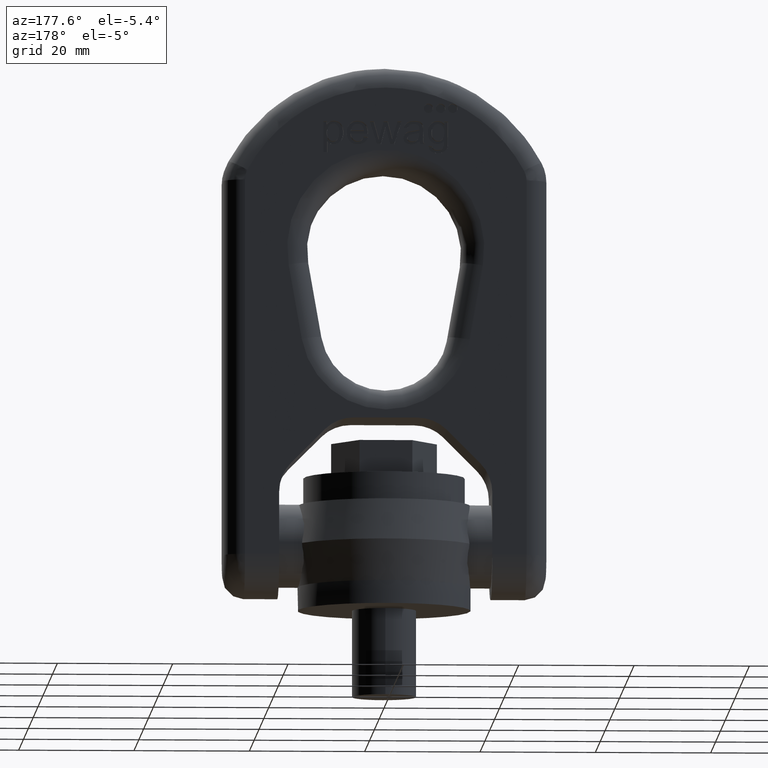
[diagram: clean part render]
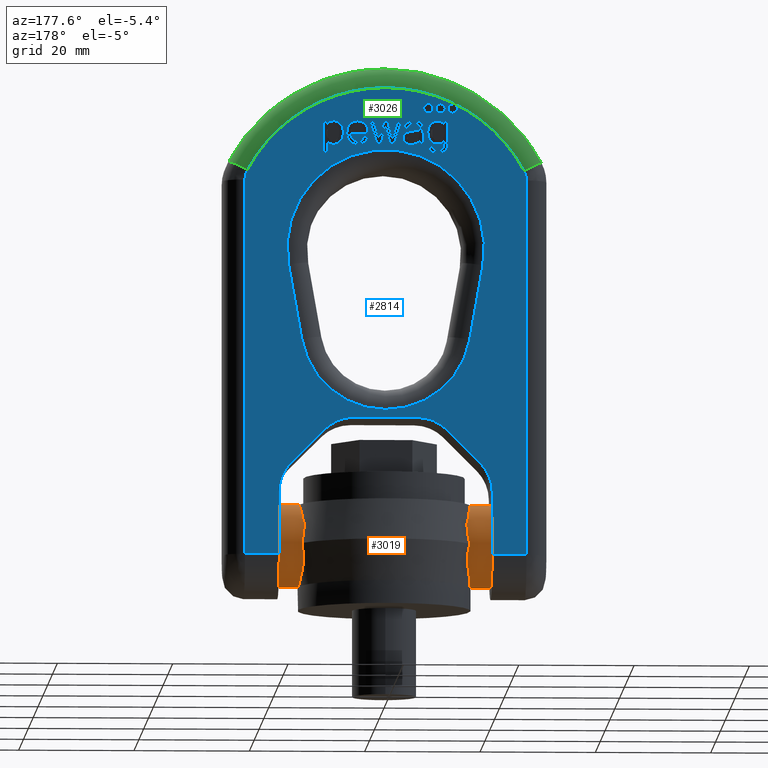
[diagram: same view with three faces highlighted in distinct colors, each labeled with its STEP entity id]
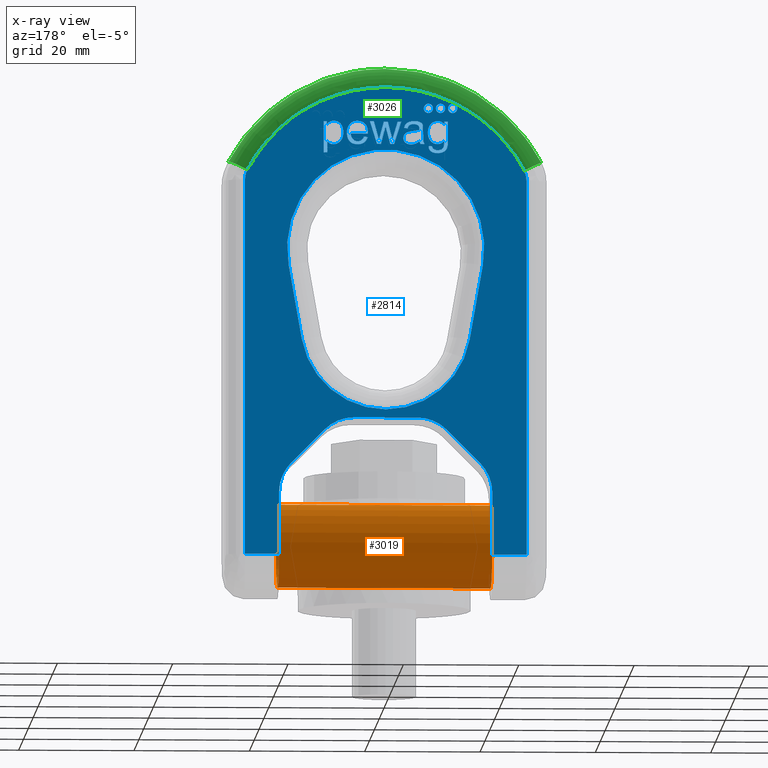
[diagram: x-ray of the same camera — body ghosted, the three highlighted faces saturated]
A machine part, auxiliary view with three faces highlighted in distinct colors.
The next image is the same camera in x-ray (body ghosted, the three faces saturated) — at least one of them is partly hidden behind the body in this view.
Their STEP definitions:

[orange] entity #3019 — the highlighted cylindrical surface (bore or boss wall) has radius 7.2 mm, axis along (-1, 0, 0).
#3019=ADVANCED_FACE('',(#3135,#3136),#3060,.T.);
#3060=CYLINDRICAL_SURFACE('',#6029,7.2);
#3135=FACE_BOUND('',#3411,.T.);
#3136=FACE_BOUND('',#3412,.T.);
#3411=EDGE_LOOP('',(#4613,#4614));
#3412=EDGE_LOOP('',(#4615,#4616));
#4613=ORIENTED_EDGE('',*,*,#5162,.F.);
#4614=ORIENTED_EDGE('',*,*,#5716,.F.);
#4615=ORIENTED_EDGE('',*,*,#5166,.F.);
#4616=ORIENTED_EDGE('',*,*,#5717,.F.);
#4729=VERTEX_POINT('',#7037);
#4731=VERTEX_POINT('',#7040);
#4733=VERTEX_POINT('',#7046);
#4735=VERTEX_POINT('',#7049);
#5162=EDGE_CURVE('',#4729,#4731,#5757,.T.);
#5166=EDGE_CURVE('',#4733,#4735,#5758,.T.);
#5716=EDGE_CURVE('',#4731,#4729,#5801,.T.);
#5717=EDGE_CURVE('',#4735,#4733,#5802,.T.);
#5757=CIRCLE('',#5859,7.2);
#5758=CIRCLE('',#5861,7.2);
#5801=CIRCLE('',#6012,7.2);
#5802=CIRCLE('',#6014,7.2);
#5859=AXIS2_PLACEMENT_3D('',#7039,#6165,#6166);
#5861=AXIS2_PLACEMENT_3D('',#7048,#6172,#6173);
#6012=AXIS2_PLACEMENT_3D('',#9690,#6825,#6826);
#6014=AXIS2_PLACEMENT_3D('',#9692,#6829,#6830);
#6029=AXIS2_PLACEMENT_3D('',#9714,#6866,#6867);
#6165=DIRECTION('',(-1.,0.,1.50845519650157E-16));
#6166=DIRECTION('',(0.,0.,-1.));
#6172=DIRECTION('',(1.,0.,1.50845519650157E-16));
#6173=DIRECTION('',(0.,0.,1.));
#6825=DIRECTION('',(-1.,0.,1.50845519650157E-16));
#6826=DIRECTION('',(0.,0.,-1.));
#6829=DIRECTION('',(1.,0.,1.50845519650157E-16));
#6830=DIRECTION('',(0.,0.,1.));
#6866=DIRECTION('',(-1.,0.,0.));
#6867=DIRECTION('',(0.,0.,1.));
#7037=CARTESIAN_POINT('',(-18.48,-7.2,11.2));
#7039=CARTESIAN_POINT('',(-18.48,0.,11.2));
#7040=CARTESIAN_POINT('',(-18.48,7.20000000000004,11.2));
#7046=CARTESIAN_POINT('',(18.48,-7.2,11.2));
#7048=CARTESIAN_POINT('',(18.48,0.,11.2));
#7049=CARTESIAN_POINT('',(18.48,7.19999999999996,11.2));
#9690=CARTESIAN_POINT('',(-18.48,0.,11.2));
#9692=CARTESIAN_POINT('',(18.48,0.,11.2));
#9714=CARTESIAN_POINT('',(28.,0.,11.2));

[blue] entity #2814 — the highlighted planar face has unit normal (0, 1, 0).
#337=B_SPLINE_CURVE_WITH_KNOTS('',3,(#7431,#7432,#7433,#7434),
 .UNSPECIFIED.,.F.,.F.,(4,4),(0.,1.),.UNSPECIFIED.);
#338=B_SPLINE_CURVE_WITH_KNOTS('',3,(#7436,#7437,#7438,#7439,#7440,#7441,
#7442,#7443,#7444,#7445),.UNSPECIFIED.,.F.,.F.,(4,2,2,2,4),(0.,0.228358481914091,
0.466434346037291,0.703045305681468,1.),.UNSPECIFIED.);
#339=B_SPLINE_CURVE_WITH_KNOTS('',3,(#7447,#7448,#7449,#7450),
 .UNSPECIFIED.,.F.,.F.,(4,4),(0.,1.),.UNSPECIFIED.);
#340=B_SPLINE_CURVE_WITH_KNOTS('',3,(#7454,#7455,#7456,#7457),
 .UNSPECIFIED.,.F.,.F.,(4,4),(0.,1.),.UNSPECIFIED.);
#341=B_SPLINE_CURVE_WITH_KNOTS('',3,(#7459,#7460,#7461,#7462),
 .UNSPECIFIED.,.F.,.F.,(4,4),(0.,1.),.UNSPECIFIED.);
#342=B_SPLINE_CURVE_WITH_KNOTS('',3,(#7464,#7465,#7466,#7467),
 .UNSPECIFIED.,.F.,.F.,(4,4),(0.,1.),.UNSPECIFIED.);
#343=B_SPLINE_CURVE_WITH_KNOTS('',3,(#7469,#7470,#7471,#7472),
 .UNSPECIFIED.,.F.,.F.,(4,4),(0.,1.),.UNSPECIFIED.);
#344=B_SPLINE_CURVE_WITH_KNOTS('',3,(#7474,#7475,#7476,#7477,#7478,#7479),
 .UNSPECIFIED.,.F.,.F.,(4,2,4),(0.,0.55978260869565,1.),.UNSPECIFIED.);
#345=B_SPLINE_CURVE_WITH_KNOTS('',3,(#7481,#7482,#7483,#7484),
 .UNSPECIFIED.,.F.,.F.,(4,4),(0.,1.),.UNSPECIFIED.);
#346=B_SPLINE_CURVE_WITH_KNOTS('',3,(#7488,#7489,#7490,#7491),
 .UNSPECIFIED.,.F.,.F.,(4,4),(0.,1.),.UNSPECIFIED.);
#347=B_SPLINE_CURVE_WITH_KNOTS('',3,(#7493,#7494,#7495,#7496,#7497,#7498),
 .UNSPECIFIED.,.F.,.F.,(4,2,4),(0.,0.476123595505615,1.),.UNSPECIFIED.);
#348=B_SPLINE_CURVE_WITH_KNOTS('',3,(#7500,#7501,#7502,#7503),
 .UNSPECIFIED.,.F.,.F.,(4,4),(0.,1.),.UNSPECIFIED.);
#349=B_SPLINE_CURVE_WITH_KNOTS('',3,(#7505,#7506,#7507,#7508,#7509,#7510,
#7511,#7512),.UNSPECIFIED.,.F.,.F.,(4,2,2,4),(0.,0.472355769230762,0.730769230769214,
1.),.UNSPECIFIED.);
#350=B_SPLINE_CURVE_WITH_KNOTS('',3,(#7514,#7515,#7516,#7517),
 .UNSPECIFIED.,.F.,.F.,(4,4),(0.,1.),.UNSPECIFIED.);
#351=B_SPLINE_CURVE_WITH_KNOTS('',3,(#7525,#7526,#7527,#7528),
 .UNSPECIFIED.,.F.,.F.,(4,4),(0.,1.),.UNSPECIFIED.);
#352=B_SPLINE_CURVE_WITH_KNOTS('',3,(#7530,#7531,#7532,#7533),
 .UNSPECIFIED.,.F.,.F.,(4,4),(0.,1.),.UNSPECIFIED.);
#353=B_SPLINE_CURVE_WITH_KNOTS('',3,(#7555,#7556,#7557,#7558),
 .UNSPECIFIED.,.F.,.F.,(4,4),(0.,1.),.UNSPECIFIED.);
#354=B_SPLINE_CURVE_WITH_KNOTS('',3,(#7568,#7569,#7570,#7571),
 .UNSPECIFIED.,.F.,.F.,(4,4),(0.,1.),.UNSPECIFIED.);
#355=B_SPLINE_CURVE_WITH_KNOTS('',3,(#7573,#7574,#7575,#7576,#7577,#7578),
 .UNSPECIFIED.,.F.,.F.,(4,2,4),(0.,0.434679334916866,1.),.UNSPECIFIED.);
#356=B_SPLINE_CURVE_WITH_KNOTS('',3,(#7580,#7581,#7582,#7583),
 .UNSPECIFIED.,.F.,.F.,(4,4),(0.,1.),.UNSPECIFIED.);
#357=B_SPLINE_CURVE_WITH_KNOTS('',3,(#7587,#7588,#7589,#7590),
 .UNSPECIFIED.,.F.,.F.,(4,4),(0.,1.),.UNSPECIFIED.);
#358=B_SPLINE_CURVE_WITH_KNOTS('',3,(#7592,#7593,#7594,#7595,#7596,#7597),
 .UNSPECIFIED.,.F.,.F.,(4,2,4),(0.,0.570469798657718,1.),.UNSPECIFIED.);
#359=B_SPLINE_CURVE_WITH_KNOTS('',3,(#7599,#7600,#7601,#7602,#7603,#7604,
#7605,#7606,#7607,#7608,#7609,#7610),.UNSPECIFIED.,.F.,.F.,(4,2,2,2,2,4),
(0.,0.122570626594234,0.245141253188468,0.495637533752412,0.746133814316355,
1.),.UNSPECIFIED.);
#360=B_SPLINE_CURVE_WITH_KNOTS('',3,(#7612,#7613,#7614,#7615),
 .UNSPECIFIED.,.F.,.F.,(4,4),(0.,1.),.UNSPECIFIED.);
#361=B_SPLINE_CURVE_WITH_KNOTS('',3,(#7616,#7617,#7618,#7619),
 .UNSPECIFIED.,.F.,.F.,(4,4),(0.,1.),.UNSPECIFIED.);
#362=B_SPLINE_CURVE_WITH_KNOTS('',3,(#7622,#7623,#7624,#7625),
 .UNSPECIFIED.,.F.,.F.,(4,4),(0.,1.),.UNSPECIFIED.);
#363=B_SPLINE_CURVE_WITH_KNOTS('',3,(#7627,#7628,#7629,#7630,#7631,#7632,
#7633,#7634,#7635,#7636),.UNSPECIFIED.,.F.,.F.,(4,2,2,2,4),(0.,0.230139294836345,
0.492074150143503,0.754009005450665,1.),.UNSPECIFIED.);
#364=B_SPLINE_CURVE_WITH_KNOTS('',3,(#7653,#7654,#7655,#7656,#7657,#7658),
 .UNSPECIFIED.,.F.,.F.,(4,2,4),(0.,0.329498767460968,1.),.UNSPECIFIED.);
#365=B_SPLINE_CURVE_WITH_KNOTS('',3,(#7661,#7662,#7663,#7664,#7665,#7666,
#7667,#7668),.UNSPECIFIED.,.F.,.F.,(4,2,2,4),(0.,0.361028692437342,0.681441656975486,
1.),.UNSPECIFIED.);
#366=B_SPLINE_CURVE_WITH_KNOTS('',3,(#7670,#7671,#7672,#7673),
 .UNSPECIFIED.,.F.,.F.,(4,4),(0.,1.),.UNSPECIFIED.);
#367=B_SPLINE_CURVE_WITH_KNOTS('',3,(#7677,#7678,#7679,#7680),
 .UNSPECIFIED.,.F.,.F.,(4,4),(0.,1.),.UNSPECIFIED.);
#368=B_SPLINE_CURVE_WITH_KNOTS('',3,(#7682,#7683,#7684,#7685,#7686,#7687),
 .UNSPECIFIED.,.F.,.F.,(4,2,4),(0.,0.555803571428574,1.),.UNSPECIFIED.);
#369=B_SPLINE_CURVE_WITH_KNOTS('',3,(#7689,#7690,#7691,#7692,#7693,#7694),
 .UNSPECIFIED.,.F.,.F.,(4,2,4),(0.,0.500000000000002,1.),.UNSPECIFIED.);
#370=B_SPLINE_CURVE_WITH_KNOTS('',3,(#7696,#7697,#7698,#7699,#7700,#7701,
#7702,#7703,#7704,#7705,#7706,#7707,#7708,#7709),.UNSPECIFIED.,.F.,.F.,
(4,2,2,2,2,2,4),(0.,0.152201346045992,0.327187324733599,0.502173303421206,
0.676318003365121,0.850462703309033,1.),.UNSPECIFIED.);
#1766=LINE('',#7041,#2074);
#1769=LINE('',#7050,#2077);
#1771=LINE('',#7059,#2079);
#1772=LINE('',#7063,#2080);
#1815=LINE('',#7395,#2123);
#1816=LINE('',#7400,#2124);
#1817=LINE('',#7406,#2125);
#1818=LINE('',#7407,#2126);
#1819=LINE('',#7411,#2127);
#1820=LINE('',#7415,#2128);
#1821=LINE('',#7419,#2129);
#1822=LINE('',#7422,#2130);
#1823=LINE('',#7423,#2131);
#1824=LINE('',#7428,#2132);
#1825=LINE('',#7452,#2133);
#1826=LINE('',#7486,#2134);
#1827=LINE('',#7518,#2135);
#1828=LINE('',#7521,#2136);
#1829=LINE('',#7523,#2137);
#1830=LINE('',#7535,#2138);
#1831=LINE('',#7537,#2139);
#1832=LINE('',#7539,#2140);
#1833=LINE('',#7541,#2141);
#1834=LINE('',#7543,#2142);
#1835=LINE('',#7545,#2143);
#1836=LINE('',#7547,#2144);
#1837=LINE('',#7549,#2145);
#1838=LINE('',#7551,#2146);
#1839=LINE('',#7553,#2147);
#1840=LINE('',#7560,#2148);
#1841=LINE('',#7562,#2149);
#1842=LINE('',#7564,#2150);
#1843=LINE('',#7565,#2151);
#1844=LINE('',#7585,#2152);
#1845=LINE('',#7638,#2153);
#1846=LINE('',#7640,#2154);
#1847=LINE('',#7642,#2155);
#1848=LINE('',#7644,#2156);
#1849=LINE('',#7646,#2157);
#1850=LINE('',#7648,#2158);
#1851=LINE('',#7650,#2159);
#1852=LINE('',#7675,#2160);
#1853=LINE('',#7711,#2161);
#1854=LINE('',#7713,#2162);
#1855=LINE('',#7715,#2163);
#2074=VECTOR('',#6167,1.);
#2077=VECTOR('',#6174,1.);
#2079=VECTOR('',#6182,1.);
#2080=VECTOR('',#6187,1.);
#2123=VECTOR('',#6260,1.);
#2124=VECTOR('',#6263,1.);
#2125=VECTOR('',#6268,1.);
#2126=VECTOR('',#6269,1.);
#2127=VECTOR('',#6272,1.);
#2128=VECTOR('',#6275,1.);
#2129=VECTOR('',#6278,1.);
#2130=VECTOR('',#6281,1.);
#2131=VECTOR('',#6282,1.);
#2132=VECTOR('',#6287,1.);
#2133=VECTOR('',#6288,1.);
#2134=VECTOR('',#6289,1.);
#2135=VECTOR('',#6290,1.);
#2136=VECTOR('',#6291,1.);
#2137=VECTOR('',#6292,1.);
#2138=VECTOR('',#6293,1.);
#2139=VECTOR('',#6294,1.);
#2140=VECTOR('',#6295,1.);
#2141=VECTOR('',#6296,1.);
#2142=VECTOR('',#6297,1.);
#2143=VECTOR('',#6298,1.);
#2144=VECTOR('',#6299,1.);
#2145=VECTOR('',#6300,1.);
#2146=VECTOR('',#6301,1.);
#2147=VECTOR('',#6302,1.);
#2148=VECTOR('',#6303,1.);
#2149=VECTOR('',#6304,1.);
#2150=VECTOR('',#6305,1.);
#2151=VECTOR('',#6306,1.);
#2152=VECTOR('',#6307,1.);
#2153=VECTOR('',#6308,1.);
#2154=VECTOR('',#6309,1.);
#2155=VECTOR('',#6310,1.);
#2156=VECTOR('',#6311,1.);
#2157=VECTOR('',#6312,1.);
#2158=VECTOR('',#6313,1.);
#2159=VECTOR('',#6314,1.);
#2160=VECTOR('',#6317,1.);
#2161=VECTOR('',#6318,1.);
#2162=VECTOR('',#6319,1.);
#2163=VECTOR('',#6320,1.);
#2686=PLANE('',#5894);
#2814=ADVANCED_FACE('',(#3097,#3098,#3099,#3100,#3101,#3102,#3103,#3104,
#3105,#3106),#2686,.T.);
#3097=FACE_BOUND('',#3183,.T.);
#3098=FACE_BOUND('',#3184,.T.);
#3099=FACE_BOUND('',#3185,.T.);
#3100=FACE_BOUND('',#3186,.T.);
#3101=FACE_BOUND('',#3187,.T.);
#3102=FACE_BOUND('',#3188,.T.);
#3103=FACE_BOUND('',#3189,.T.);
#3104=FACE_BOUND('',#3190,.T.);
#3105=FACE_BOUND('',#3191,.T.);
#3106=FACE_BOUND('',#3192,.T.);
#3183=EDGE_LOOP('',(#3628,#3629,#3630,#3631));
#3184=EDGE_LOOP('',(#3632,#3633,#3634,#3635,#3636,#3637,#3638,#3639,#3640,
#3641,#3642,#3643,#3644,#3645,#3646,#3647,#3648,#3649));
#3185=EDGE_LOOP('',(#3650,#3651,#3652,#3653,#3654,#3655,#3656,#3657,#3658,
#3659,#3660,#3661,#3662,#3663,#3664,#3665,#3666));
#3186=EDGE_LOOP('',(#3667,#3668,#3669,#3670,#3671,#3672,#3673,#3674,#3675,
#3676,#3677,#3678,#3679,#3680,#3681,#3682,#3683,#3684,#3685));
#3187=EDGE_LOOP('',(#3686,#3687,#3688,#3689,#3690,#3691,#3692,#3693,#3694));
#3188=EDGE_LOOP('',(#3695,#3696,#3697,#3698,#3699,#3700,#3701,#3702,#3703,
#3704));
#3189=EDGE_LOOP('',(#3705));
#3190=EDGE_LOOP('',(#3706,#3707,#3708,#3709,#3710,#3711,#3712,#3713,#3714,
#3715,#3716));
#3191=EDGE_LOOP('',(#3717));
#3192=EDGE_LOOP('',(#3718));
#3628=ORIENTED_EDGE('',*,*,#5263,.T.);
#3629=ORIENTED_EDGE('',*,*,#5264,.T.);
#3630=ORIENTED_EDGE('',*,*,#5265,.T.);
#3631=ORIENTED_EDGE('',*,*,#5266,.T.);
#3632=ORIENTED_EDGE('',*,*,#5267,.T.);
#3633=ORIENTED_EDGE('',*,*,#5268,.T.);
#3634=ORIENTED_EDGE('',*,*,#5173,.T.);
#3635=ORIENTED_EDGE('',*,*,#5167,.T.);
#3636=ORIENTED_EDGE('',*,*,#5269,.T.);
#3637=ORIENTED_EDGE('',*,*,#5270,.T.);
#3638=ORIENTED_EDGE('',*,*,#5271,.T.);
#3639=ORIENTED_EDGE('',*,*,#5272,.T.);
#3640=ORIENTED_EDGE('',*,*,#5273,.T.);
#3641=ORIENTED_EDGE('',*,*,#5274,.T.);
#3642=ORIENTED_EDGE('',*,*,#5275,.T.);
#3643=ORIENTED_EDGE('',*,*,#5276,.T.);
#3644=ORIENTED_EDGE('',*,*,#5163,.T.);
#3645=ORIENTED_EDGE('',*,*,#5277,.T.);
#3646=ORIENTED_EDGE('',*,*,#5171,.T.);
#3647=ORIENTED_EDGE('',*,*,#5278,.T.);
#3648=ORIENTED_EDGE('',*,*,#5279,.T.);
#3649=ORIENTED_EDGE('',*,*,#5280,.T.);
#3650=ORIENTED_EDGE('',*,*,#5281,.F.);
#3651=ORIENTED_EDGE('',*,*,#5282,.F.);
#3652=ORIENTED_EDGE('',*,*,#5283,.F.);
#3653=ORIENTED_EDGE('',*,*,#5284,.F.);
#3654=ORIENTED_EDGE('',*,*,#5285,.F.);
#3655=ORIENTED_EDGE('',*,*,#5286,.F.);
#3656=ORIENTED_EDGE('',*,*,#5287,.F.);
#3657=ORIENTED_EDGE('',*,*,#5288,.F.);
#3658=ORIENTED_EDGE('',*,*,#5289,.F.);
#3659=ORIENTED_EDGE('',*,*,#5290,.F.);
#3660=ORIENTED_EDGE('',*,*,#5291,.F.);
#3661=ORIENTED_EDGE('',*,*,#5292,.F.);
#3662=ORIENTED_EDGE('',*,*,#5293,.F.);
#3663=ORIENTED_EDGE('',*,*,#5294,.F.);
#3664=ORIENTED_EDGE('',*,*,#5295,.F.);
#3665=ORIENTED_EDGE('',*,*,#5296,.F.);
#3666=ORIENTED_EDGE('',*,*,#5297,.F.);
#3667=ORIENTED_EDGE('',*,*,#5298,.F.);
#3668=ORIENTED_EDGE('',*,*,#5299,.F.);
#3669=ORIENTED_EDGE('',*,*,#5300,.F.);
#3670=ORIENTED_EDGE('',*,*,#5301,.F.);
#3671=ORIENTED_EDGE('',*,*,#5302,.F.);
#3672=ORIENTED_EDGE('',*,*,#5303,.F.);
#3673=ORIENTED_EDGE('',*,*,#5304,.F.);
#3674=ORIENTED_EDGE('',*,*,#5305,.F.);
#3675=ORIENTED_EDGE('',*,*,#5306,.F.);
#3676=ORIENTED_EDGE('',*,*,#5307,.F.);
#3677=ORIENTED_EDGE('',*,*,#5308,.F.);
#3678=ORIENTED_EDGE('',*,*,#5309,.F.);
#3679=ORIENTED_EDGE('',*,*,#5310,.F.);
#3680=ORIENTED_EDGE('',*,*,#5311,.F.);
#3681=ORIENTED_EDGE('',*,*,#5312,.F.);
#3682=ORIENTED_EDGE('',*,*,#5313,.F.);
#3683=ORIENTED_EDGE('',*,*,#5314,.F.);
#3684=ORIENTED_EDGE('',*,*,#5315,.F.);
#3685=ORIENTED_EDGE('',*,*,#5316,.F.);
#3686=ORIENTED_EDGE('',*,*,#5317,.F.);
#3687=ORIENTED_EDGE('',*,*,#5318,.F.);
#3688=ORIENTED_EDGE('',*,*,#5319,.F.);
#3689=ORIENTED_EDGE('',*,*,#5320,.F.);
#3690=ORIENTED_EDGE('',*,*,#5321,.F.);
#3691=ORIENTED_EDGE('',*,*,#5322,.F.);
#3692=ORIENTED_EDGE('',*,*,#5323,.F.);
#3693=ORIENTED_EDGE('',*,*,#5324,.F.);
#3694=ORIENTED_EDGE('',*,*,#5325,.F.);
#3695=ORIENTED_EDGE('',*,*,#5326,.F.);
#3696=ORIENTED_EDGE('',*,*,#5327,.F.);
#3697=ORIENTED_EDGE('',*,*,#5328,.F.);
#3698=ORIENTED_EDGE('',*,*,#5329,.F.);
#3699=ORIENTED_EDGE('',*,*,#5330,.F.);
#3700=ORIENTED_EDGE('',*,*,#5331,.F.);
#3701=ORIENTED_EDGE('',*,*,#5332,.F.);
#3702=ORIENTED_EDGE('',*,*,#5333,.F.);
#3703=ORIENTED_EDGE('',*,*,#5334,.F.);
#3704=ORIENTED_EDGE('',*,*,#5335,.F.);
#3705=ORIENTED_EDGE('',*,*,#5336,.F.);
#3706=ORIENTED_EDGE('',*,*,#5337,.F.);
#3707=ORIENTED_EDGE('',*,*,#5338,.F.);
#3708=ORIENTED_EDGE('',*,*,#5339,.F.);
#3709=ORIENTED_EDGE('',*,*,#5340,.F.);
#3710=ORIENTED_EDGE('',*,*,#5341,.F.);
#3711=ORIENTED_EDGE('',*,*,#5342,.F.);
#3712=ORIENTED_EDGE('',*,*,#5343,.F.);
#3713=ORIENTED_EDGE('',*,*,#5344,.F.);
#3714=ORIENTED_EDGE('',*,*,#5345,.F.);
#3715=ORIENTED_EDGE('',*,*,#5346,.F.);
#3716=ORIENTED_EDGE('',*,*,#5347,.F.);
#3717=ORIENTED_EDGE('',*,*,#5348,.F.);
#3718=ORIENTED_EDGE('',*,*,#5349,.F.);
#4731=VERTEX_POINT('',#7040);
#4732=VERTEX_POINT('',#7042);
#4735=VERTEX_POINT('',#7049);
#4736=VERTEX_POINT('',#7051);
#4739=VERTEX_POINT('',#7058);
#4740=VERTEX_POINT('',#7060);
#4741=VERTEX_POINT('',#7064);
#4827=VERTEX_POINT('',#7396);
#4828=VERTEX_POINT('',#7397);
#4829=VERTEX_POINT('',#7399);
#4830=VERTEX_POINT('',#7401);
#4831=VERTEX_POINT('',#7404);
#4832=VERTEX_POINT('',#7405);
#4833=VERTEX_POINT('',#7408);
#4834=VERTEX_POINT('',#7410);
#4835=VERTEX_POINT('',#7412);
#4836=VERTEX_POINT('',#7414);
#4837=VERTEX_POINT('',#7416);
#4838=VERTEX_POINT('',#7418);
#4839=VERTEX_POINT('',#7420);
#4840=VERTEX_POINT('',#7424);
#4841=VERTEX_POINT('',#7426);
#4842=VERTEX_POINT('',#7429);
#4843=VERTEX_POINT('',#7430);
#4844=VERTEX_POINT('',#7435);
#4845=VERTEX_POINT('',#7446);
#4846=VERTEX_POINT('',#7451);
#4847=VERTEX_POINT('',#7453);
#4848=VERTEX_POINT('',#7458);
#4849=VERTEX_POINT('',#7463);
#4850=VERTEX_POINT('',#7468);
#4851=VERTEX_POINT('',#7473);
#4852=VERTEX_POINT('',#7480);
#4853=VERTEX_POINT('',#7485);
#4854=VERTEX_POINT('',#7487);
#4855=VERTEX_POINT('',#7492);
#4856=VERTEX_POINT('',#7499);
#4857=VERTEX_POINT('',#7504);
#4858=VERTEX_POINT('',#7513);
#4859=VERTEX_POINT('',#7519);
#4860=VERTEX_POINT('',#7520);
#4861=VERTEX_POINT('',#7522);
#4862=VERTEX_POINT('',#7524);
#4863=VERTEX_POINT('',#7529);
#4864=VERTEX_POINT('',#7534);
#4865=VERTEX_POINT('',#7536);
#4866=VERTEX_POINT('',#7538);
#4867=VERTEX_POINT('',#7540);
#4868=VERTEX_POINT('',#7542);
#4869=VERTEX_POINT('',#7544);
#4870=VERTEX_POINT('',#7546);
#4871=VERTEX_POINT('',#7548);
#4872=VERTEX_POINT('',#7550);
#4873=VERTEX_POINT('',#7552);
#4874=VERTEX_POINT('',#7554);
#4875=VERTEX_POINT('',#7559);
#4876=VERTEX_POINT('',#7561);
#4877=VERTEX_POINT('',#7563);
#4878=VERTEX_POINT('',#7566);
#4879=VERTEX_POINT('',#7567);
#4880=VERTEX_POINT('',#7572);
#4881=VERTEX_POINT('',#7579);
#4882=VERTEX_POINT('',#7584);
#4883=VERTEX_POINT('',#7586);
#4884=VERTEX_POINT('',#7591);
#4885=VERTEX_POINT('',#7598);
#4886=VERTEX_POINT('',#7611);
#4887=VERTEX_POINT('',#7620);
#4888=VERTEX_POINT('',#7621);
#4889=VERTEX_POINT('',#7626);
#4890=VERTEX_POINT('',#7637);
#4891=VERTEX_POINT('',#7639);
#4892=VERTEX_POINT('',#7641);
#4893=VERTEX_POINT('',#7643);
#4894=VERTEX_POINT('',#7645);
#4895=VERTEX_POINT('',#7647);
#4896=VERTEX_POINT('',#7649);
#4897=VERTEX_POINT('',#7652);
#4898=VERTEX_POINT('',#7659);
#4899=VERTEX_POINT('',#7660);
#4900=VERTEX_POINT('',#7669);
#4901=VERTEX_POINT('',#7674);
#4902=VERTEX_POINT('',#7676);
#4903=VERTEX_POINT('',#7681);
#4904=VERTEX_POINT('',#7688);
#4905=VERTEX_POINT('',#7695);
#4906=VERTEX_POINT('',#7710);
#4907=VERTEX_POINT('',#7712);
#4908=VERTEX_POINT('',#7714);
#4909=VERTEX_POINT('',#7717);
#4910=VERTEX_POINT('',#7719);
#5163=EDGE_CURVE('',#4732,#4731,#1766,.T.);
#5167=EDGE_CURVE('',#4736,#4735,#1769,.T.);
#5171=EDGE_CURVE('',#4740,#4739,#1771,.T.);
#5173=EDGE_CURVE('',#4741,#4736,#1772,.T.);
#5263=EDGE_CURVE('',#4827,#4828,#1815,.T.);
#5264=EDGE_CURVE('',#4828,#4829,#5775,.T.);
#5265=EDGE_CURVE('',#4829,#4830,#1816,.T.);
#5266=EDGE_CURVE('',#4830,#4827,#5776,.T.);
#5267=EDGE_CURVE('',#4831,#4832,#5777,.T.);
#5268=EDGE_CURVE('',#4832,#4741,#1817,.T.);
#5269=EDGE_CURVE('',#4735,#4833,#1818,.T.);
#5270=EDGE_CURVE('',#4833,#4834,#5778,.T.);
#5271=EDGE_CURVE('',#4834,#4835,#1819,.T.);
#5272=EDGE_CURVE('',#4835,#4836,#5779,.T.);
#5273=EDGE_CURVE('',#4836,#4837,#1820,.T.);
#5274=EDGE_CURVE('',#4837,#4838,#5780,.T.);
#5275=EDGE_CURVE('',#4838,#4839,#1821,.T.);
#5276=EDGE_CURVE('',#4839,#4732,#5781,.T.);
#5277=EDGE_CURVE('',#4731,#4740,#1822,.T.);
#5278=EDGE_CURVE('',#4739,#4840,#1823,.T.);
#5279=EDGE_CURVE('',#4840,#4841,#5782,.T.);
#5280=EDGE_CURVE('',#4841,#4831,#5783,.T.);
#5281=EDGE_CURVE('',#4842,#4843,#1824,.T.);
#5282=EDGE_CURVE('',#4844,#4842,#337,.T.);
#5283=EDGE_CURVE('',#4845,#4844,#338,.T.);
#5284=EDGE_CURVE('',#4846,#4845,#339,.T.);
#5285=EDGE_CURVE('',#4847,#4846,#1825,.T.);
#5286=EDGE_CURVE('',#4848,#4847,#340,.T.);
#5287=EDGE_CURVE('',#4849,#4848,#341,.T.);
#5288=EDGE_CURVE('',#4850,#4849,#342,.T.);
#5289=EDGE_CURVE('',#4851,#4850,#343,.T.);
#5290=EDGE_CURVE('',#4852,#4851,#344,.T.);
#5291=EDGE_CURVE('',#4853,#4852,#345,.T.);
#5292=EDGE_CURVE('',#4854,#4853,#1826,.T.);
#5293=EDGE_CURVE('',#4855,#4854,#346,.T.);
#5294=EDGE_CURVE('',#4856,#4855,#347,.T.);
#5295=EDGE_CURVE('',#4857,#4856,#348,.T.);
#5296=EDGE_CURVE('',#4858,#4857,#349,.T.);
#5297=EDGE_CURVE('',#4843,#4858,#350,.T.);
#5298=EDGE_CURVE('',#4859,#4860,#1827,.T.);
#5299=EDGE_CURVE('',#4861,#4859,#1828,.T.);
#5300=EDGE_CURVE('',#4862,#4861,#1829,.T.);
#5301=EDGE_CURVE('',#4863,#4862,#351,.T.);
#5302=EDGE_CURVE('',#4864,#4863,#352,.T.);
#5303=EDGE_CURVE('',#4865,#4864,#1830,.T.);
#5304=EDGE_CURVE('',#4866,#4865,#1831,.T.);
#5305=EDGE_CURVE('',#4867,#4866,#1832,.T.);
#5306=EDGE_CURVE('',#4868,#4867,#1833,.T.);
#5307=EDGE_CURVE('',#4869,#4868,#1834,.T.);
#5308=EDGE_CURVE('',#4870,#4869,#1835,.T.);
#5309=EDGE_CURVE('',#4871,#4870,#1836,.T.);
#5310=EDGE_CURVE('',#4872,#4871,#1837,.T.);
#5311=EDGE_CURVE('',#4873,#4872,#1838,.T.);
#5312=EDGE_CURVE('',#4874,#4873,#1839,.T.);
#5313=EDGE_CURVE('',#4875,#4874,#353,.T.);
#5314=EDGE_CURVE('',#4876,#4875,#1840,.T.);
#5315=EDGE_CURVE('',#4877,#4876,#1841,.T.);
#5316=EDGE_CURVE('',#4860,#4877,#1842,.T.);
#5317=EDGE_CURVE('',#4878,#4879,#1843,.T.);
#5318=EDGE_CURVE('',#4880,#4878,#354,.T.);
#5319=EDGE_CURVE('',#4881,#4880,#355,.T.);
#5320=EDGE_CURVE('',#4882,#4881,#356,.T.);
#5321=EDGE_CURVE('',#4883,#4882,#1844,.T.);
#5322=EDGE_CURVE('',#4884,#4883,#357,.T.);
#5323=EDGE_CURVE('',#4885,#4884,#358,.T.);
#5324=EDGE_CURVE('',#4886,#4885,#359,.T.);
#5325=EDGE_CURVE('',#4879,#4886,#360,.T.);
#5326=EDGE_CURVE('',#4887,#4888,#361,.T.);
#5327=EDGE_CURVE('',#4889,#4887,#362,.T.);
#5328=EDGE_CURVE('',#4890,#4889,#363,.T.);
#5329=EDGE_CURVE('',#4891,#4890,#1845,.T.);
#5330=EDGE_CURVE('',#4892,#4891,#1846,.T.);
#5331=EDGE_CURVE('',#4893,#4892,#1847,.T.);
#5332=EDGE_CURVE('',#4894,#4893,#1848,.T.);
#5333=EDGE_CURVE('',#4895,#4894,#1849,.T.);
#5334=EDGE_CURVE('',#4896,#4895,#1850,.T.);
#5335=EDGE_CURVE('',#4888,#4896,#1851,.T.);
#5336=EDGE_CURVE('',#4897,#4897,#5784,.T.);
#5337=EDGE_CURVE('',#4898,#4899,#364,.T.);
#5338=EDGE_CURVE('',#4900,#4898,#365,.T.);
#5339=EDGE_CURVE('',#4901,#4900,#366,.T.);
#5340=EDGE_CURVE('',#4902,#4901,#1852,.T.);
#5341=EDGE_CURVE('',#4903,#4902,#367,.T.);
#5342=EDGE_CURVE('',#4904,#4903,#368,.T.);
#5343=EDGE_CURVE('',#4905,#4904,#369,.T.);
#5344=EDGE_CURVE('',#4906,#4905,#370,.T.);
#5345=EDGE_CURVE('',#4907,#4906,#1853,.T.);
#5346=EDGE_CURVE('',#4908,#4907,#1854,.T.);
#5347=EDGE_CURVE('',#4899,#4908,#1855,.T.);
#5348=EDGE_CURVE('',#4909,#4909,#5785,.T.);
#5349=EDGE_CURVE('',#4910,#4910,#5786,.T.);
#5775=CIRCLE('',#5882,17.1);
#5776=CIRCLE('',#5883,14.7884785599634);
#5777=CIRCLE('',#5884,3.6);
#5778=CIRCLE('',#5885,7.2);
#5779=CIRCLE('',#5886,7.2);
#5780=CIRCLE('',#5887,7.2);
#5781=CIRCLE('',#5888,7.2);
#5782=CIRCLE('',#5889,3.6);
#5783=CIRCLE('',#5890,27.1777777777778);
#5784=CIRCLE('',#5891,0.810000000000001);
#5785=CIRCLE('',#5892,0.810000000000001);
#5786=CIRCLE('',#5893,0.810000000000001);
#5882=AXIS2_PLACEMENT_3D('',#7398,#6261,#6262);
#5883=AXIS2_PLACEMENT_3D('',#7402,#6264,#6265);
#5884=AXIS2_PLACEMENT_3D('',#7403,#6266,#6267);
#5885=AXIS2_PLACEMENT_3D('',#7409,#6270,#6271);
#5886=AXIS2_PLACEMENT_3D('',#7413,#6273,#6274);
#5887=AXIS2_PLACEMENT_3D('',#7417,#6276,#6277);
#5888=AXIS2_PLACEMENT_3D('',#7421,#6279,#6280);
#5889=AXIS2_PLACEMENT_3D('',#7425,#6283,#6284);
#5890=AXIS2_PLACEMENT_3D('',#7427,#6285,#6286);
#5891=AXIS2_PLACEMENT_3D('',#7651,#6315,#6316);
#5892=AXIS2_PLACEMENT_3D('',#7716,#6321,#6322);
#5893=AXIS2_PLACEMENT_3D('',#7718,#6323,#6324);
#5894=AXIS2_PLACEMENT_3D('',#7720,#6325,#6326);
#6167=DIRECTION('',(-1.50845519650157E-16,3.5341758643483E-31,-1.));
#6174=DIRECTION('',(-1.50845519650157E-16,3.5341758643483E-31,1.));
#6182=DIRECTION('',(-1.,2.34291072916505E-15,1.17713378726998E-15));
#6187=DIRECTION('',(-1.,2.34291072916505E-15,1.17713378726998E-15));
#6260=DIRECTION('',(0.173648177666931,-4.0684217855581E-16,0.984807753012208));
#6261=DIRECTION('',(-2.34291072916505E-15,-1.,0.));
#6262=DIRECTION('',(-1.,2.33325379809746E-15,0.));
#6263=DIRECTION('',(0.173648177666931,-4.0684217855581E-16,-0.984807753012208));
#6264=DIRECTION('',(-2.34291072916505E-15,-1.,0.));
#6265=DIRECTION('',(-1.,2.34604725420937E-15,0.));
#6266=DIRECTION('',(2.34291072916505E-15,1.,0.));
#6267=DIRECTION('',(-1.,2.4093381610789E-15,0.));
#6268=DIRECTION('',(1.4065325480893E-16,-3.29538019783828E-31,-1.));
#6269=DIRECTION('',(-1.50845519650157E-16,3.5341758643483E-31,1.));
#6270=DIRECTION('',(-2.34291072916505E-15,-1.,0.));
#6271=DIRECTION('',(-1.,2.28887125302495E-15,0.));
#6272=DIRECTION('',(-0.707106781186548,1.65668806430733E-15,0.707106781186547));
#6273=DIRECTION('',(-2.34291072916505E-15,-1.,0.));
#6274=DIRECTION('',(-1.,2.28887125302495E-15,0.));
#6275=DIRECTION('',(-1.,2.34291072916505E-15,0.));
#6276=DIRECTION('',(-2.34291072916505E-15,-1.,0.));
#6277=DIRECTION('',(-1.,2.28887125302495E-15,0.));
#6278=DIRECTION('',(-0.707106781186548,1.65668806430733E-15,-0.707106781186547));
#6279=DIRECTION('',(-2.34291072916505E-15,-1.,0.));
#6280=DIRECTION('',(-1.,2.28887125302495E-15,0.));
#6281=DIRECTION('',(-1.50845519650157E-16,3.5341758643483E-31,-1.));
#6282=DIRECTION('',(1.4065325480893E-16,-3.29538019783828E-31,1.));
#6283=DIRECTION('',(2.34291072916505E-15,1.,0.));
#6284=DIRECTION('',(-1.,2.4093381610789E-15,0.));
#6285=DIRECTION('',(2.34291072916505E-15,1.,0.));
#6286=DIRECTION('',(-1.,2.32974923081922E-15,0.));
#6287=DIRECTION('',(-1.,2.34291072916505E-15,0.));
#6288=DIRECTION('',(0.989370262977934,-2.31800620424785E-15,-0.145418302613437));
#6289=DIRECTION('',(-0.991928985003785,2.32400106153516E-15,-0.12679467145492));
#6290=DIRECTION('',(-0.304245570453574,7.1282021131662E-16,0.952593634693923));
#6291=DIRECTION('',(-1.,2.34291072916505E-15,0.));
#6292=DIRECTION('',(-0.259135455314435,6.07131238563259E-16,-0.965840988879112));
#6293=DIRECTION('',(-1.,2.34291072916505E-15,0.));
#6294=DIRECTION('',(-0.254367653151693,5.95960703721634E-16,0.967107593305988));
#6295=DIRECTION('',(-1.,2.34291072916505E-15,0.));
#6296=DIRECTION('',(-0.298320908470945,6.98939257190841E-16,-0.954465628280595));
#6297=DIRECTION('',(1.,-2.34291072916505E-15,0.));
#6298=DIRECTION('',(0.269463722620019,-6.31329446847198E-16,0.963010541059526));
#6299=DIRECTION('',(0.247736970080353,-5.804256052121E-16,-0.968827329122897));
#6300=DIRECTION('',(0.266059563516179,-6.23353805959024E-16,-0.963956590652079));
#6301=DIRECTION('',(1.,-2.34291072916505E-15,0.));
#6302=DIRECTION('',(0.253070161005814,-5.92920795452047E-16,0.96744792811215));
#6303=DIRECTION('',(1.,-2.34291072916505E-15,0.));
#6304=DIRECTION('',(0.287282618696351,-6.73077529646313E-16,-0.957845862858407));
#6305=DIRECTION('',(1.,-2.34291072916505E-15,0.));
#6306=DIRECTION('',(-1.,2.34291072916505E-15,0.));
#6307=DIRECTION('',(0.992687288142565,-2.32577769809497E-15,0.120714323757208));
#6308=DIRECTION('',(-1.,2.34291072916505E-15,0.));
#6309=DIRECTION('',(0.,0.,1.));
#6310=DIRECTION('',(-1.,2.34291072916505E-15,0.));
#6311=DIRECTION('',(0.,0.,-1.));
#6312=DIRECTION('',(1.,-2.34291072916505E-15,0.));
#6313=DIRECTION('',(0.,0.,1.));
#6314=DIRECTION('',(1.,-2.34291072916505E-15,0.));
#6315=DIRECTION('',(2.34291072916505E-15,1.,0.));
#6316=DIRECTION('',(0.,0.,-1.00000000000001));
#6317=DIRECTION('',(0.988666662925711,-2.31635773213645E-15,0.150127377980627));
#6318=DIRECTION('',(1.,-2.34291072916505E-15,0.));
#6319=DIRECTION('',(0.,0.,-1.));
#6320=DIRECTION('',(1.,-2.34291072916505E-15,0.));
#6321=DIRECTION('',(2.34291072916505E-15,1.,0.));
#6322=DIRECTION('',(0.,0.,-1.00000000000001));
#6323=DIRECTION('',(2.34291072916505E-15,1.,0.));
#6324=DIRECTION('',(0.,0.,-1.00000000000001));
#6325=DIRECTION('',(2.34291072916505E-15,1.,0.));
#6326=DIRECTION('',(0.,0.,-1.));
#7040=CARTESIAN_POINT('',(-18.48,7.20000000000004,11.2));
#7041=CARTESIAN_POINT('',(-18.48,7.20000000000004,63.2222222222222));
#7042=CARTESIAN_POINT('',(-18.48,7.20000000000004,20.0176623509137));
#7049=CARTESIAN_POINT('',(18.48,7.19999999999996,11.2));
#7050=CARTESIAN_POINT('',(18.48,7.19999999999996,63.2222222222222));
#7051=CARTESIAN_POINT('',(18.48,7.19999999999996,9.19999999999997));
#7058=CARTESIAN_POINT('',(-24.4,7.20000000000006,9.20000000000003));
#7059=CARTESIAN_POINT('',(28.,7.19999999999993,9.19999999999997));
#7060=CARTESIAN_POINT('',(-18.48,7.20000000000004,9.19999999999997));
#7063=CARTESIAN_POINT('',(28.,7.19999999999993,9.19999999999997));
#7064=CARTESIAN_POINT('',(24.4,7.19999999999994,9.19999999999997));
#7395=CARTESIAN_POINT('',(16.8402125765088,7.19999999999996,59.5306161618955));
#7396=CARTESIAN_POINT('',(14.5638083411067,7.19999999999997,46.6204862075592));
#7397=CARTESIAN_POINT('',(16.8402125765088,7.19999999999996,59.5306161618955));
#7398=CARTESIAN_POINT('',(8.43447862499418E-15,7.2,62.5));
#7399=CARTESIAN_POINT('',(-16.8402125765088,7.20000000000004,59.5306161618955));
#7400=CARTESIAN_POINT('',(-14.5638083411067,7.20000000000003,46.6204862075592));
#7401=CARTESIAN_POINT('',(-14.5638083411067,7.20000000000003,46.6204862075592));
#7402=CARTESIAN_POINT('',(8.43447862499418E-15,7.2,49.1884785599633));
#7403=CARTESIAN_POINT('',(20.8,7.19999999999995,74.324996872654));
#7404=CARTESIAN_POINT('',(23.9758718190387,7.19999999999994,76.0202367344542));
#7405=CARTESIAN_POINT('',(24.4,7.19999999999994,74.324996872654));
#7406=CARTESIAN_POINT('',(24.4,7.19999999999994,9.19999999999997));
#7407=CARTESIAN_POINT('',(18.48,7.19999999999996,63.2222222222222));
#7408=CARTESIAN_POINT('',(18.48,7.19999999999996,20.0176623509137));
#7409=CARTESIAN_POINT('',(11.28,7.19999999999997,20.0176623509137));
#7410=CARTESIAN_POINT('',(16.3711688245431,7.19999999999996,25.1088311754569));
#7411=CARTESIAN_POINT('',(-10.8711111111111,7.20000000000003,52.3511111111111));
#7412=CARTESIAN_POINT('',(10.5888311754568,7.19999999999998,30.8911688245431));
#7413=CARTESIAN_POINT('',(5.4976623509137,7.19999999999999,25.8));
#7414=CARTESIAN_POINT('',(5.4976623509137,7.19999999999999,33.));
#7415=CARTESIAN_POINT('',(1.68689572499884E-14,7.2,33.));
#7416=CARTESIAN_POINT('',(-5.4976623509137,7.20000000000001,33.));
#7417=CARTESIAN_POINT('',(-5.4976623509137,7.20000000000002,25.8));
#7418=CARTESIAN_POINT('',(-10.5888311754568,7.20000000000003,30.8911688245431));
#7419=CARTESIAN_POINT('',(10.8711111111111,7.19999999999998,52.3511111111111));
#7420=CARTESIAN_POINT('',(-16.3711688245431,7.20000000000004,25.1088311754569));
#7421=CARTESIAN_POINT('',(-11.28,7.20000000000003,20.0176623509137));
#7422=CARTESIAN_POINT('',(-18.48,7.20000000000004,63.2222222222222));
#7423=CARTESIAN_POINT('',(-24.4,7.20000000000006,74.324996872654));
#7424=CARTESIAN_POINT('',(-24.4,7.20000000000006,74.324996872654));
#7425=CARTESIAN_POINT('',(-20.8,7.20000000000005,74.324996872654));
#7426=CARTESIAN_POINT('',(-23.9758718190386,7.20000000000006,76.0202367344542));
#7427=CARTESIAN_POINT('',(8.43447862499418E-15,7.2,63.2222222222222));
#7428=CARTESIAN_POINT('',(1.68689572499884E-14,7.2,80.6));
#7429=CARTESIAN_POINT('',(-6.01389991540312,7.20000000000001,80.6));
#7430=CARTESIAN_POINT('',(-6.72232706448882,7.20000000000002,80.6));
#7431=CARTESIAN_POINT('',(-5.874744582547,7.20000000000001,81.0821181887951));
#7432=CARTESIAN_POINT('',(-5.90145116157999,7.20000000000001,80.8831926323868));
#7433=CARTESIAN_POINT('',(-5.94783627253203,7.20000000000001,80.7229470452802));
#7434=CARTESIAN_POINT('',(-6.01389991540312,7.20000000000001,80.6));
#7435=CARTESIAN_POINT('',(-5.874744582547,7.20000000000001,81.0821181887951));
#7436=CARTESIAN_POINT('',(-3.40227760786098,7.20000000000001,82.4359171143515));
#7437=CARTESIAN_POINT('',(-3.16894644367799,7.20000000000001,82.2259401381428));
#7438=CARTESIAN_POINT('',(-3.0522808615865,7.20000000000001,81.9593246354567));
#7439=CARTESIAN_POINT('',(-3.0522808615865,7.20000000000001,81.296239447429));
#7440=CARTESIAN_POINT('',(-3.17316327194636,7.20000000000001,81.0240982348427));
#7441=CARTESIAN_POINT('',(-3.65800788038077,7.20000000000001,80.6109450014301));
#7442=CARTESIAN_POINT('',(-3.98982234658683,7.20000000000001,80.5074443591711));
#7443=CARTESIAN_POINT('',(-4.9343918787011,7.20000000000001,80.5074443591711));
#7444=CARTESIAN_POINT('',(-5.42213834840891,7.20000000000001,80.6994627782042));
#7445=CARTESIAN_POINT('',(-5.874744582547,7.20000000000001,81.0821181887951));
#7446=CARTESIAN_POINT('',(-3.40227760786098,7.20000000000001,82.4359171143515));
#7447=CARTESIAN_POINT('',(-4.61953536799634,7.20000000000001,82.8544896392939));
#7448=CARTESIAN_POINT('',(-4.04182989523002,7.20000000000001,82.7854182655411));
#7449=CARTESIAN_POINT('',(-3.63701438146676,7.20000000000001,82.6458940905602));
#7450=CARTESIAN_POINT('',(-3.40227760786098,7.20000000000001,82.4359171143515));
#7451=CARTESIAN_POINT('',(-4.61953536799634,7.20000000000001,82.8544896392939));
#7452=CARTESIAN_POINT('',(2.72685733873898,7.19999999999999,81.7747119284401));
#7453=CARTESIAN_POINT('',(-5.24924838940585,7.20000000000001,82.9470452801228));
#7454=CARTESIAN_POINT('',(-5.82976508101775,7.20000000000001,83.0824251726784));
#7455=CARTESIAN_POINT('',(-5.67655365393374,7.20000000000001,83.0285495011512));
#7456=CARTESIAN_POINT('',(-5.48398516301163,7.20000000000001,82.9829623944743));
#7457=CARTESIAN_POINT('',(-5.24924838940585,7.20000000000001,82.9470452801228));
#7458=CARTESIAN_POINT('',(-5.82976508101775,7.20000000000001,83.0824251726784));
#7459=CARTESIAN_POINT('',(-5.81149215852149,7.20000000000001,83.503760552571));
#7460=CARTESIAN_POINT('',(-5.82273703390381,7.20000000000001,83.4222563315426));
#7461=CARTESIAN_POINT('',(-5.82976508101775,7.20000000000001,83.2813507290867));
#7462=CARTESIAN_POINT('',(-5.82976508101775,7.20000000000001,83.0824251726784));
#7463=CARTESIAN_POINT('',(-5.81149215852149,7.20000000000001,83.503760552571));
#7464=CARTESIAN_POINT('',(-5.70044901412115,7.20000000000001,83.7607060629317));
#7465=CARTESIAN_POINT('',(-5.76089021930108,7.20000000000001,83.672294704528));
#7466=CARTESIAN_POINT('',(-5.79884167371639,7.20000000000001,83.5866462010745));
#7467=CARTESIAN_POINT('',(-5.81149215852149,7.20000000000001,83.503760552571));
#7468=CARTESIAN_POINT('',(-5.70044901412115,7.20000000000001,83.7607060629317));
#7469=CARTESIAN_POINT('',(-5.40667664475823,7.20000000000001,83.9734458940906));
#7470=CARTESIAN_POINT('',(-5.54161514934598,7.20000000000001,83.9195702225633));
#7471=CARTESIAN_POINT('',(-5.63860219951843,7.20000000000001,83.8491174213354));
#7472=CARTESIAN_POINT('',(-5.70044901412115,7.20000000000001,83.7607060629317));
#7473=CARTESIAN_POINT('',(-5.40667664475823,7.20000000000001,83.9734458940906));
#7474=CARTESIAN_POINT('',(-4.17536279039498,7.20000000000001,83.8960859554874));
#7475=CARTESIAN_POINT('',(-4.34403592112968,7.20000000000001,84.0024558710668));
#7476=CARTESIAN_POINT('',(-4.5731502570443,7.20000000000001,84.054950115119));
#7477=CARTESIAN_POINT('',(-5.09041452463068,7.20000000000001,84.054950115119));
#7478=CARTESIAN_POINT('',(-5.27173814017048,7.20000000000001,84.0287029930929));
#7479=CARTESIAN_POINT('',(-5.40667664475823,7.20000000000001,83.9734458940906));
#7480=CARTESIAN_POINT('',(-4.17536279039498,7.20000000000001,83.8960859554874));
#7481=CARTESIAN_POINT('',(-3.82817726296608,7.20000000000001,83.3075978511128));
#7482=CARTESIAN_POINT('',(-3.8900240775688,7.20000000000001,83.5949347659248));
#7483=CARTESIAN_POINT('',(-4.00668965966029,7.20000000000001,83.791097467383));
#7484=CARTESIAN_POINT('',(-4.17536279039498,7.20000000000001,83.8960859554874));
#7485=CARTESIAN_POINT('',(-3.82817726296608,7.20000000000001,83.3075978511128));
#7486=CARTESIAN_POINT('',(-2.58770917968691,7.20000000000001,83.4661623707988));
#7487=CARTESIAN_POINT('',(-3.16894644367799,7.20000000000001,83.3918649270913));
#7488=CARTESIAN_POINT('',(-3.72697338452526,7.20000000000001,84.2939370683039));
#7489=CARTESIAN_POINT('',(-3.42757857747119,7.20000000000001,84.0936300844206));
#7490=CARTESIAN_POINT('',(-3.24063252424024,7.20000000000001,83.792478894858));
#7491=CARTESIAN_POINT('',(-3.16894644367799,7.20000000000001,83.3918649270913));
#7492=CARTESIAN_POINT('',(-3.72697338452526,7.20000000000001,84.2939370683039));
#7493=CARTESIAN_POINT('',(-6.01530552482591,7.20000000000001,84.3878741366078));
#7494=CARTESIAN_POINT('',(-5.79181362660244,7.20000000000001,84.5273983115887));
#7495=CARTESIAN_POINT('',(-5.44041127090517,7.20000000000001,84.5964696853415));
#7496=CARTESIAN_POINT('',(-4.43961736187934,7.20000000000001,84.5964696853415));
#7497=CARTESIAN_POINT('',(-4.02636819157934,7.20000000000001,84.4956254796623));
#7498=CARTESIAN_POINT('',(-3.72697338452526,7.20000000000001,84.2939370683039));
#7499=CARTESIAN_POINT('',(-6.01530552482591,7.20000000000001,84.3878741366078));
#7500=CARTESIAN_POINT('',(-6.42714908570311,7.20000000000002,83.8850345356869));
#7501=CARTESIAN_POINT('',(-6.37654714648271,7.20000000000002,84.0825786646201));
#7502=CARTESIAN_POINT('',(-6.23879742304938,7.20000000000002,84.2497313891021));
#7503=CARTESIAN_POINT('',(-6.01530552482591,7.20000000000001,84.3878741366078));
#7504=CARTESIAN_POINT('',(-6.42714908570311,7.20000000000002,83.8850345356869));
#7505=CARTESIAN_POINT('',(-6.53678662068066,7.20000000000002,81.1429009976976));
#7506=CARTESIAN_POINT('',(-6.51429686991604,7.20000000000002,81.3280122793553));
#7507=CARTESIAN_POINT('',(-6.50445760395651,7.20000000000002,81.6927091327705));
#7508=CARTESIAN_POINT('',(-6.50445760395651,7.20000000000002,82.5326170376055));
#7509=CARTESIAN_POINT('',(-6.50445760395651,7.20000000000001,82.8296239447429));
#7510=CARTESIAN_POINT('',(-6.50445760395651,7.20000000000001,83.4360706062932));
#7511=CARTESIAN_POINT('',(-6.47915663434631,7.20000000000002,83.6888718342287));
#7512=CARTESIAN_POINT('',(-6.42714908570311,7.20000000000002,83.8850345356869));
#7513=CARTESIAN_POINT('',(-6.53678662068066,7.20000000000002,81.1429009976976));
#7514=CARTESIAN_POINT('',(-6.72232706448882,7.20000000000001,80.6));
#7515=CARTESIAN_POINT('',(-6.61971757662522,7.20000000000002,80.7768227168074));
#7516=CARTESIAN_POINT('',(-6.5578707620225,7.20000000000002,80.9577897160399));
#7517=CARTESIAN_POINT('',(-6.53678662068066,7.20000000000002,81.1429009976976));
#7518=CARTESIAN_POINT('',(3.70293529442285,7.19999999999999,64.4048898571643));
#7519=CARTESIAN_POINT('',(-1.46956465152598,7.2,80.6));
#7520=CARTESIAN_POINT('',(-2.7177458189627,7.20000000000001,84.5080583269378));
#7521=CARTESIAN_POINT('',(1.68689572499884E-14,7.2,80.6));
#7522=CARTESIAN_POINT('',(-0.769571158977013,7.2,80.6));
#7523=CARTESIAN_POINT('',(-5.06726709837286,7.20000000000001,64.5817716530872));
#7524=CARTESIAN_POINT('',(-0.139858137567499,7.2,82.9470452801228));
#7525=CARTESIAN_POINT('',(-0.0611440098913095,7.2,83.263392171911));
#7526=CARTESIAN_POINT('',(-0.110340339688928,7.2,83.0520337682272));
#7527=CARTESIAN_POINT('',(-0.137046918721921,7.2,82.9456638526477));
#7528=CARTESIAN_POINT('',(-0.139858137567499,7.2,82.9470452801228));
#7529=CARTESIAN_POINT('',(-0.0611440098913095,7.2,83.263392171911));
#7530=CARTESIAN_POINT('',(0.0133532895165118,7.2,83.6087490406754));
#7531=CARTESIAN_POINT('',(0.0133532895165118,7.2,83.5894090560246));
#7532=CARTESIAN_POINT('',(-0.0105420706709028,7.2,83.4747505755948));
#7533=CARTESIAN_POINT('',(-0.0611440098913095,7.2,83.263392171911));
#7534=CARTESIAN_POINT('',(0.0133532895165118,7.2,83.6087490406754));
#7535=CARTESIAN_POINT('',(1.68689572499884E-14,7.2,83.6087490406754));
#7536=CARTESIAN_POINT('',(0.0288149931671926,7.2,83.6087490406754));
#7537=CARTESIAN_POINT('',(5.04205429745428,7.19999999999999,64.5483782027813));
#7538=CARTESIAN_POINT('',(0.820173098197451,7.2,80.6));
#7539=CARTESIAN_POINT('',(1.68689572499884E-14,7.2,80.6));
#7540=CARTESIAN_POINT('',(1.52438341901479,7.2,80.6));
#7541=CARTESIAN_POINT('',(-3.55937687681231,7.20000000000001,64.3347154456754));
#7542=CARTESIAN_POINT('',(2.74585800741851,7.19999999999999,84.5080583269378));
#7543=CARTESIAN_POINT('',(1.68689572499884E-14,7.2,84.5080583269378));
#7544=CARTESIAN_POINT('',(2.04586451486954,7.2,84.5080583269378));
#7545=CARTESIAN_POINT('',(-3.62628508850014,7.20000000000001,64.2369071478448));
#7546=CARTESIAN_POINT('',(1.18000911043146,7.2,81.4136607828089));
#7547=CARTESIAN_POINT('',(5.47379394378687,7.19999999999999,64.6219155274324));
#7548=CARTESIAN_POINT('',(1.04507060584371,7.2,81.9413660782809));
#7549=CARTESIAN_POINT('',(5.77198885710447,7.19999999999999,64.8153363217924));
#7550=CARTESIAN_POINT('',(0.336643456758003,7.2,84.5080583269378));
#7551=CARTESIAN_POINT('',(1.68689572499884E-14,7.2,84.5080583269378));
#7552=CARTESIAN_POINT('',(-0.357727598099809,7.2,84.5080583269378));
#7553=CARTESIAN_POINT('',(-5.54627525542568,7.20000000000001,64.6730463245716));
#7554=CARTESIAN_POINT('',(-0.893264788182453,7.2,82.4607828089025));
#7555=CARTESIAN_POINT('',(-1.14065204659333,7.2,81.4993092862625));
#7556=CARTESIAN_POINT('',(-1.12519034294265,7.2,81.5752877973906));
#7557=CARTESIAN_POINT('',(-1.04366499642089,7.2,81.895778971604));
#7558=CARTESIAN_POINT('',(-0.893264788182453,7.2,82.4607828089025));
#7559=CARTESIAN_POINT('',(-1.14065204659333,7.2,81.4993092862625));
#7560=CARTESIAN_POINT('',(1.68689572499884E-14,7.2,81.4993092862625));
#7561=CARTESIAN_POINT('',(-1.15611375024401,7.2,81.4993092862625));
#7562=CARTESIAN_POINT('',(3.96865297539988,7.19999999999999,64.4125233590539));
#7563=CARTESIAN_POINT('',(-2.05851499967461,7.20000000000001,84.5080583269378));
#7564=CARTESIAN_POINT('',(1.68689572499884E-14,7.2,84.5080583269378));
#7565=CARTESIAN_POINT('',(1.68689572499884E-14,7.2,82.3861857252494));
#7566=CARTESIAN_POINT('',(6.06309624520077,7.19999999999999,82.3861857252494));
#7567=CARTESIAN_POINT('',(3.08320426888789,7.19999999999999,82.3861857252494));
#7568=CARTESIAN_POINT('',(5.6863929198933,7.19999999999999,81.3957022256332));
#7569=CARTESIAN_POINT('',(5.90988481811676,7.19999999999999,81.6236377590177));
#7570=CARTESIAN_POINT('',(6.03498405674499,7.19999999999999,81.9537989255564));
#7571=CARTESIAN_POINT('',(6.06309624520077,7.19999999999999,82.3861857252494));
#7572=CARTESIAN_POINT('',(5.6863929198933,7.19999999999999,81.3957022256332));
#7573=CARTESIAN_POINT('',(4.20066376000522,7.19999999999999,81.2534151957022));
#7574=CARTESIAN_POINT('',(4.37495932843107,7.19999999999999,81.1194167306217));
#7575=CARTESIAN_POINT('',(4.59142317954059,7.19999999999999,81.0531082118189));
#7576=CARTESIAN_POINT('',(5.1831847465348,7.19999999999999,81.0531082118189));
#7577=CARTESIAN_POINT('',(5.46290102166983,7.19999999999999,81.1663852647736));
#7578=CARTESIAN_POINT('',(5.6863929198933,7.19999999999999,81.3957022256332));
#7579=CARTESIAN_POINT('',(4.20066376000522,7.19999999999999,81.2534151957022));
#7580=CARTESIAN_POINT('',(3.79865946508754,7.19999999999999,81.8598618572525));
#7581=CARTESIAN_POINT('',(3.89142968699162,7.19999999999999,81.5891020721412));
#7582=CARTESIAN_POINT('',(4.02496258215659,7.19999999999999,81.3874136607828));
#7583=CARTESIAN_POINT('',(4.20066376000522,7.19999999999999,81.2534151957022));
#7584=CARTESIAN_POINT('',(3.79865946508754,7.19999999999999,81.8598618572525));
#7585=CARTESIAN_POINT('',(-2.17802383793623,7.20000000000001,81.1330757969762));
#7586=CARTESIAN_POINT('',(3.10569401965252,7.19999999999999,81.775594781274));
#7587=CARTESIAN_POINT('',(3.72416216567972,7.19999999999999,80.8362240982349));
#7588=CARTESIAN_POINT('',(3.42476735862564,7.19999999999999,81.0544896392939));
#7589=CARTESIAN_POINT('',(3.21814277347565,7.19999999999999,81.366692248657));
#7590=CARTESIAN_POINT('',(3.10569401965252,7.19999999999999,81.775594781274));
#7591=CARTESIAN_POINT('',(3.72416216567972,7.19999999999999,80.8362240982349));
#7592=CARTESIAN_POINT('',(6.24863668900893,7.19999999999999,81.0475825019187));
#7593=CARTESIAN_POINT('',(5.91269603696234,7.19999999999999,80.6870299309286));
#7594=CARTESIAN_POINT('',(5.44603370859636,7.19999999999999,80.5074443591711));
#7595=CARTESIAN_POINT('',(4.39885468861849,7.19999999999999,80.5074443591711));
#7596=CARTESIAN_POINT('',(4.0235569727338,7.19999999999999,80.6165771297007));
#7597=CARTESIAN_POINT('',(3.72416216567972,7.19999999999999,80.8362240982349));
#7598=CARTESIAN_POINT('',(6.24863668900893,7.19999999999999,81.0475825019187));
#7599=CARTESIAN_POINT('',(3.36432615344571,7.19999999999999,83.7689946277821));
#7600=CARTESIAN_POINT('',(3.55127220667666,7.19999999999999,84.0701458173446));
#7601=CARTESIAN_POINT('',(3.78038654259129,7.19999999999999,84.2828856485035));
#7602=CARTESIAN_POINT('',(4.31732934209672,7.19999999999999,84.5343054489639));
#7603=CARTESIAN_POINT('',(4.59704561723175,7.19999999999999,84.5964696853415));
#7604=CARTESIAN_POINT('',(5.47836272532051,7.19999999999999,84.5964696853415));
#7605=CARTESIAN_POINT('',(5.93799700657254,7.19999999999999,84.4044512663085));
#7606=CARTESIAN_POINT('',(6.59019977874668,7.19999999999999,83.6391404451266));
#7607=CARTESIAN_POINT('',(6.75325047179022,7.19999999999999,83.1390636991558));
#7608=CARTESIAN_POINT('',(6.75325047179022,7.19999999999999,81.8985418265541));
#7609=CARTESIAN_POINT('',(6.58457734105553,7.19999999999999,81.4067536454336));
#7610=CARTESIAN_POINT('',(6.24863668900893,7.19999999999999,81.0475825019187));
#7611=CARTESIAN_POINT('',(3.36432615344571,7.19999999999999,83.7689946277821));
#7612=CARTESIAN_POINT('',(3.08320426888789,7.19999999999999,82.3861857252494));
#7613=CARTESIAN_POINT('',(3.08320426888789,7.19999999999999,83.0078280890253));
#7614=CARTESIAN_POINT('',(3.17738010021476,7.19999999999999,83.4692248656946));
#7615=CARTESIAN_POINT('',(3.36432615344571,7.19999999999999,83.7689946277821));
#7616=CARTESIAN_POINT('',(9.03455456497692,7.19999999999998,84.5964696853415));
#7617=CARTESIAN_POINT('',(9.5391683477582,7.19999999999998,84.5964696853415));
#7618=CARTESIAN_POINT('',(9.91868289191126,7.19999999999998,84.3989255564083));
#7619=CARTESIAN_POINT('',(10.1702869785905,7.19999999999998,84.0038372985418));
#7620=CARTESIAN_POINT('',(9.03455456497692,7.19999999999998,84.5964696853415));
#7621=CARTESIAN_POINT('',(10.1702869785905,7.19999999999998,84.0038372985418));
#7622=CARTESIAN_POINT('',(7.79761827292252,7.19999999999998,84.0383729854183));
#7623=CARTESIAN_POINT('',(8.10122990824496,7.19999999999998,84.4099769762088));
#7624=CARTESIAN_POINT('',(8.51307346912217,7.19999999999998,84.5964696853415));
#7625=CARTESIAN_POINT('',(9.03455456497692,7.19999999999998,84.5964696853415));
#7626=CARTESIAN_POINT('',(7.79761827292252,7.19999999999998,84.0383729854183));
#7627=CARTESIAN_POINT('',(10.107034554565,7.19999999999998,81.008902532617));
#7628=CARTESIAN_POINT('',(9.84980803019459,7.19999999999998,80.6745970836531));
#7629=CARTESIAN_POINT('',(9.50683933103405,7.19999999999998,80.5074443591711));
#7630=CARTESIAN_POINT('',(8.59319320622114,7.19999999999998,80.5074443591711));
#7631=CARTESIAN_POINT('',(8.18134964534394,7.19999999999998,80.695318495779));
#7632=CARTESIAN_POINT('',(7.51227956009632,7.19999999999998,81.4440521872602));
#7633=CARTESIAN_POINT('',(7.34501203878443,7.19999999999998,81.9496546431312));
#7634=CARTESIAN_POINT('',(7.34501203878443,7.19999999999998,83.1818879508826));
#7635=CARTESIAN_POINT('',(7.49541224702286,7.19999999999998,83.6667689946278));
#7636=CARTESIAN_POINT('',(7.79761827292252,7.19999999999998,84.0383729854183));
#7637=CARTESIAN_POINT('',(10.107034554565,7.19999999999998,81.008902532617));
#7638=CARTESIAN_POINT('',(1.68689572499884E-14,7.2,81.008902532617));
#7639=CARTESIAN_POINT('',(10.1253074770613,7.19999999999998,81.008902532617));
#7640=CARTESIAN_POINT('',(10.1253074770613,7.19999999999998,63.2222222222222));
#7641=CARTESIAN_POINT('',(10.1253074770613,7.19999999999998,79.0970069071374));
#7642=CARTESIAN_POINT('',(1.68689572499884E-14,7.2,79.0970069071374));
#7643=CARTESIAN_POINT('',(10.8,7.19999999999998,79.0970069071374));
#7644=CARTESIAN_POINT('',(10.8,7.19999999999998,63.2222222222222));
#7645=CARTESIAN_POINT('',(10.8,7.19999999999998,84.5080583269378));
#7646=CARTESIAN_POINT('',(1.68689572499884E-14,7.2,84.5080583269378));
#7647=CARTESIAN_POINT('',(10.1857486822412,7.19999999999998,84.5080583269378));
#7648=CARTESIAN_POINT('',(10.1857486822412,7.19999999999998,63.2222222222222));
#7649=CARTESIAN_POINT('',(10.1857486822412,7.19999999999998,84.0038372985418));
#7650=CARTESIAN_POINT('',(1.68689572499884E-14,7.2,84.0038372985418));
#7651=CARTESIAN_POINT('',(-11.61,7.20000000000003,86.81));
#7652=CARTESIAN_POINT('',(-11.61,7.20000000000003,86.));
#7653=CARTESIAN_POINT('',(-10.6313268692653,7.20000000000003,79.8830391404451));
#7654=CARTESIAN_POINT('',(-10.7437756230884,7.20000000000003,80.1579432079816));
#7655=CARTESIAN_POINT('',(-10.8,7.20000000000003,80.5723714504989));
#7656=CARTESIAN_POINT('',(-10.8,7.20000000000003,82.2535686876439));
#7657=CARTESIAN_POINT('',(-10.8,7.20000000000002,83.3808135072909));
#7658=CARTESIAN_POINT('',(-10.8,7.20000000000002,84.5080583269378));
#7659=CARTESIAN_POINT('',(-10.6313268692653,7.20000000000003,79.8830391404451));
#7660=CARTESIAN_POINT('',(-10.8,7.20000000000003,84.5080583269378));
#7661=CARTESIAN_POINT('',(-7.87633240059867,7.20000000000002,79.3111281657713));
#7662=CARTESIAN_POINT('',(-8.17572720765275,7.20000000000002,79.1135840368381));
#7663=CARTESIAN_POINT('',(-8.55102492353743,7.20000000000002,79.015502686109));
#7664=CARTESIAN_POINT('',(-9.40001301490205,7.20000000000002,79.015502686109));
#7665=CARTESIAN_POINT('',(-9.74298171406259,7.20000000000002,79.0914811972372));
#7666=CARTESIAN_POINT('',(-10.3176137015035,7.20000000000003,79.3972705396432));
#7667=CARTESIAN_POINT('',(-10.5188781154422,7.20000000000003,79.6095165003837));
#7668=CARTESIAN_POINT('',(-10.6313268692653,7.20000000000003,79.8830391404451));
#7669=CARTESIAN_POINT('',(-7.87633240059867,7.20000000000002,79.3111281657713));
#7670=CARTESIAN_POINT('',(-7.42653738530616,7.20000000000002,80.2753645433615));
#7671=CARTESIAN_POINT('',(-7.42653738530616,7.20000000000002,79.8291634689179));
#7672=CARTESIAN_POINT('',(-7.57553198412181,7.20000000000002,79.5072908672295));
#7673=CARTESIAN_POINT('',(-7.87633240059867,7.20000000000002,79.3111281657713));
#7674=CARTESIAN_POINT('',(-7.42653738530616,7.20000000000002,80.2753645433615));
#7675=CARTESIAN_POINT('',(-2.69850957813829,7.20000000000001,80.9933076523251));
#7676=CARTESIAN_POINT('',(-8.08155137632588,7.20000000000002,80.1759017651573));
#7677=CARTESIAN_POINT('',(-8.34580594781023,7.20000000000002,79.711742133538));
#7678=CARTESIAN_POINT('',(-8.19540573957179,7.20000000000002,79.8153491941673));
#7679=CARTESIAN_POINT('',(-8.10685234593608,7.20000000000002,79.9700690713738));
#7680=CARTESIAN_POINT('',(-8.08155137632588,7.20000000000002,80.1759017651573));
#7681=CARTESIAN_POINT('',(-8.34580594781023,7.20000000000002,79.711742133538));
#7682=CARTESIAN_POINT('',(-9.76125463655884,7.20000000000002,79.7669992325403));
#7683=CARTESIAN_POINT('',(-9.59820394351531,7.20000000000002,79.6274750575595));
#7684=CARTESIAN_POINT('',(-9.34238302856769,7.20000000000002,79.5570222563316));
#7685=CARTESIAN_POINT('',(-8.71267000715818,7.20000000000002,79.5570222563316));
#7686=CARTESIAN_POINT('',(-8.49761176547145,7.20000000000002,79.6095165003837));
#7687=CARTESIAN_POINT('',(-8.34580594781023,7.20000000000002,79.711742133538));
#7688=CARTESIAN_POINT('',(-9.76125463655884,7.20000000000002,79.7669992325403));
#7689=CARTESIAN_POINT('',(-10.1140626016789,7.20000000000002,81.1125095932464));
#7690=CARTESIAN_POINT('',(-10.1140626016789,7.20000000000002,80.7588641596316));
#7691=CARTESIAN_POINT('',(-10.0957896791826,7.20000000000002,80.4811972371451));
#7692=CARTESIAN_POINT('',(-10.0226979891976,7.20000000000002,80.0778204144282));
#7693=CARTESIAN_POINT('',(-9.92289972017959,7.20000000000002,79.9079048349962));
#7694=CARTESIAN_POINT('',(-9.76125463655884,7.20000000000002,79.7669992325403));
#7695=CARTESIAN_POINT('',(-10.1140626016789,7.20000000000002,81.1125095932464));
#7696=CARTESIAN_POINT('',(-10.1618533220537,7.20000000000002,84.0397544128933));
#7697=CARTESIAN_POINT('',(-9.86667534326803,7.20000000000003,84.4113584036838));
#7698=CARTESIAN_POINT('',(-9.4843495802694,7.20000000000003,84.5964696853415));
#7699=CARTESIAN_POINT('',(-8.47512201470682,7.20000000000002,84.5964696853415));
#7700=CARTESIAN_POINT('',(-8.0534391878701,7.20000000000002,84.4044512663085));
#7701=CARTESIAN_POINT('',(-7.44340469837963,7.20000000000002,83.6391404451266));
#7702=CARTESIAN_POINT('',(-7.29159888071841,7.20000000000002,83.1597851112817));
#7703=CARTESIAN_POINT('',(-7.29159888071841,7.20000000000002,82.0132003069839));
#7704=CARTESIAN_POINT('',(-7.447621526648,7.20000000000002,81.5393706830392));
#7705=CARTESIAN_POINT('',(-8.07452332921192,7.20000000000002,80.7878741366078));
#7706=CARTESIAN_POINT('',(-8.4905837183575,7.20000000000002,80.6));
#7707=CARTESIAN_POINT('',(-9.45202056354524,7.20000000000003,80.6));
#7708=CARTESIAN_POINT('',(-9.82169584173878,7.20000000000003,80.7699155794321));
#7709=CARTESIAN_POINT('',(-10.1140626016789,7.20000000000003,81.1125095932464));
#7710=CARTESIAN_POINT('',(-10.1618533220537,7.20000000000003,84.0397544128933));
#7711=CARTESIAN_POINT('',(1.68689572499884E-14,7.2,84.0397544128933));
#7712=CARTESIAN_POINT('',(-10.1773150257044,7.20000000000002,84.0397544128933));
#7713=CARTESIAN_POINT('',(-10.1773150257044,7.20000000000002,63.2222222222222));
#7714=CARTESIAN_POINT('',(-10.1773150257044,7.20000000000002,84.5080583269378));
#7715=CARTESIAN_POINT('',(1.68689572499884E-14,7.2,84.5080583269378));
#7716=CARTESIAN_POINT('',(-7.39799999999999,7.20000000000002,86.81));
#7717=CARTESIAN_POINT('',(-7.39799999999999,7.20000000000002,86.));
#7718=CARTESIAN_POINT('',(-9.50399999999998,7.20000000000002,86.81));
#7719=CARTESIAN_POINT('',(-9.50399999999998,7.20000000000002,86.));
#7720=CARTESIAN_POINT('',(1.68689572499884E-14,7.2,63.2222222222222));

[green] entity #3026 — the highlighted toroidal blend (fillet) surface has major radius 27.1778 mm and minor (blend) radius 3.6 mm.
#202=TOROIDAL_SURFACE('',#6041,27.1777777777778,3.6);
#2651=FACE_OUTER_BOUND('',#3419,.T.);
#3026=ADVANCED_FACE('',(#2651),#202,.T.);
#3419=EDGE_LOOP('',(#4641,#4642,#4643,#4644));
#4641=ORIENTED_EDGE('',*,*,#5734,.T.);
#4642=ORIENTED_EDGE('',*,*,#5369,.F.);
#4643=ORIENTED_EDGE('',*,*,#5736,.F.);
#4644=ORIENTED_EDGE('',*,*,#5280,.F.);
#4831=VERTEX_POINT('',#7404);
#4841=VERTEX_POINT('',#7426);
#4928=VERTEX_POINT('',#7762);
#4929=VERTEX_POINT('',#7764);
#5280=EDGE_CURVE('',#4841,#4831,#5783,.T.);
#5369=EDGE_CURVE('',#4928,#4929,#5791,.T.);
#5734=EDGE_CURVE('',#4841,#4929,#5812,.T.);
#5736=EDGE_CURVE('',#4831,#4928,#5814,.T.);
#5783=CIRCLE('',#5890,27.1777777777778);
#5791=CIRCLE('',#5904,30.7777777777778);
#5812=CIRCLE('',#6037,3.6);
#5814=CIRCLE('',#6040,3.6);
#5890=AXIS2_PLACEMENT_3D('',#7427,#6285,#6286);
#5904=AXIS2_PLACEMENT_3D('',#7763,#6360,#6361);
#6037=AXIS2_PLACEMENT_3D('',#9754,#6882,#6883);
#6040=AXIS2_PLACEMENT_3D('',#9773,#6888,#6889);
#6041=AXIS2_PLACEMENT_3D('',#9774,#6890,#6891);
#6285=DIRECTION('',(2.34291072916505E-15,1.,0.));
#6286=DIRECTION('',(-1.,2.32974923081922E-15,0.));
#6360=DIRECTION('',(-2.34291072916505E-15,-1.,0.));
#6361=DIRECTION('',(-1.,2.33905854973768E-15,0.));
#6882=DIRECTION('',(0.470899961611151,-9.07645798048268E-16,0.882186616399623));
#6883=DIRECTION('',(0.882186616399624,0.,-0.470899961611152));
#6888=DIRECTION('',(0.470899961611152,-9.07645798048269E-16,-0.882186616399623));
#6889=DIRECTION('',(-0.882186616399623,0.,-0.470899961611152));
#6890=DIRECTION('',(2.34291072916505E-15,1.,0.));
#6891=DIRECTION('',(-1.,2.33905854973768E-15,0.));
#7404=CARTESIAN_POINT('',(23.9758718190387,7.19999999999994,76.0202367344542));
#7426=CARTESIAN_POINT('',(-23.9758718190386,7.20000000000006,76.0202367344542));
#7427=CARTESIAN_POINT('',(8.43447862499418E-15,7.2,63.2222222222222));
#7762=CARTESIAN_POINT('',(27.1517436380773,3.59999999999993,77.7154765962543));
#7763=CARTESIAN_POINT('',(0.,3.59999999999999,63.2222222222222));
#7764=CARTESIAN_POINT('',(-27.1517436380773,3.60000000000006,77.7154765962543));
#9754=CARTESIAN_POINT('',(-23.9758718190386,3.60000000000006,76.0202367344542));
#9773=CARTESIAN_POINT('',(23.9758718190387,3.59999999999994,76.0202367344542));
#9774=CARTESIAN_POINT('',(0.,3.6,63.2222222222222));